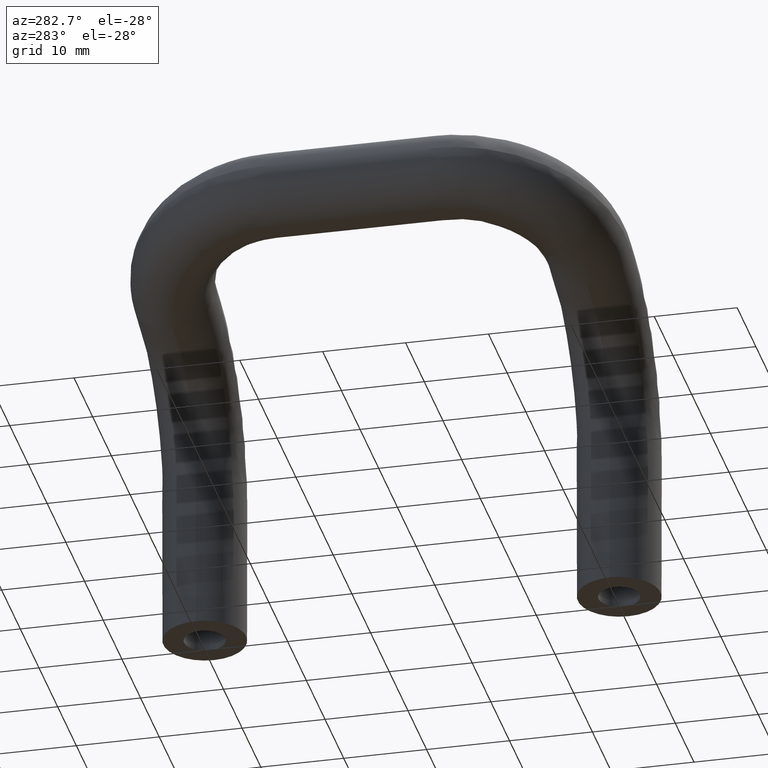
[diagram: clean part render]
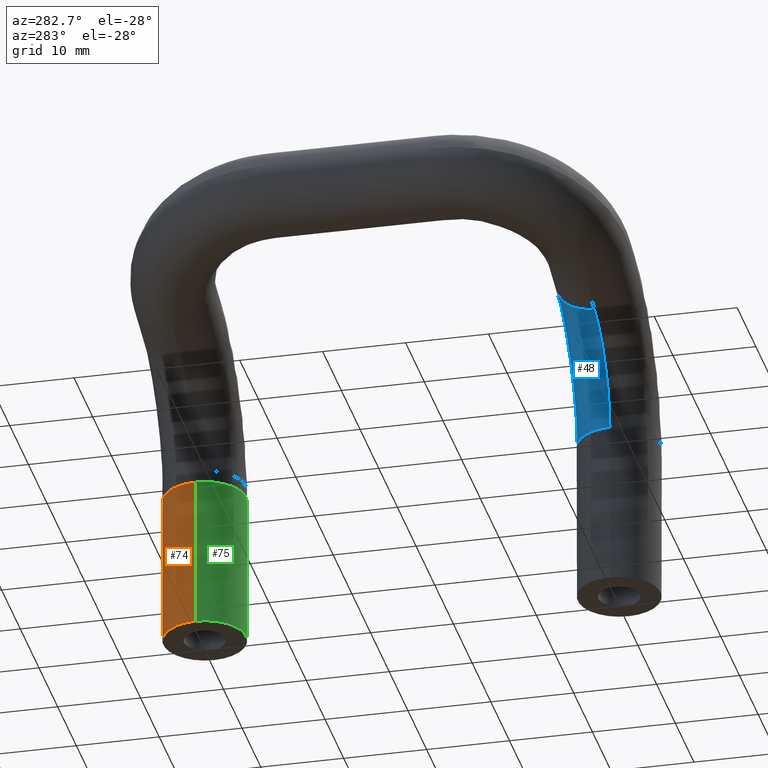
[diagram: same view with three faces highlighted in distinct colors, each labeled with its STEP entity id]
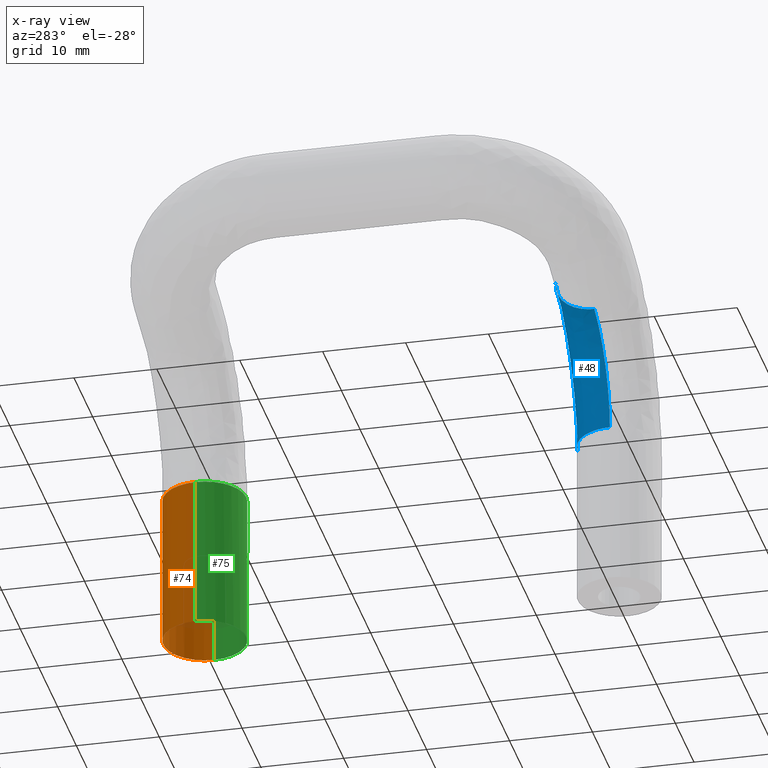
[diagram: x-ray of the same camera — body ghosted, the three highlighted faces saturated]
A machine part, auxiliary view with three faces highlighted in distinct colors.
The next image is the same camera in x-ray (body ghosted, the three faces saturated) — at least one of them is partly hidden behind the body in this view.
Their STEP definitions:

[orange] entity #74 — the highlighted cylindrical surface (partial cylindrical patch) has radius 5 mm, axis along (0, -0, 1).
#74=ADVANCED_FACE('',(#421),#420,.T.);
#420=CYLINDRICAL_SURFACE('',#1057,5.00000000000E+00);
#421=FACE_OUTER_BOUND('',#1058,.T.);
#1054=CARTESIAN_POINT('',(0.00000000000E+00,5.00000000000E+01,0.00000000000E+00));
#1055=DIRECTION('',(0.00000000000E+00,-0.00000000000E+00,1.00000000000E+00));
#1056=DIRECTION('',(1.00000000000E+00,0.00000000000E+00,0.00000000000E+00));
#1057=AXIS2_PLACEMENT_3D('',#1054,#1055,#1056);
#1058=EDGE_LOOP('',(#1244,#1245,#1246,#1247,#1248));
#1244=ORIENTED_EDGE('',*,*,#1273,.T.);
#1245=ORIENTED_EDGE('',*,*,#1307,.F.);
#1246=ORIENTED_EDGE('',*,*,#1352,.F.);
#1247=ORIENTED_EDGE('',*,*,#1313,.T.);
#1248=ORIENTED_EDGE('',*,*,#1353,.T.);
#1273=EDGE_CURVE('',#1385,#1431,#1432,.T.);
#1307=EDGE_CURVE('',#1653,#1431,#1660,.T.);
#1313=EDGE_CURVE('',#1698,#1699,#1700,.T.);
#1352=EDGE_CURVE('',#1698,#1653,#1956,.T.);
#1353=EDGE_CURVE('',#1699,#1385,#1962,.T.);
#1385=VERTEX_POINT('',#2000);
#1431=VERTEX_POINT('',#2047);
#1432=CIRCLE('',#2051,5.00000000000E+00);
#1653=VERTEX_POINT('',#2230);
#1660=CIRCLE('',#2238,5.00000000000E+00);
#1698=VERTEX_POINT('',#2274);
#1699=VERTEX_POINT('',#2275);
#1700=CIRCLE('',#2279,5.00000000000E+00);
#1956=(BOUNDED_CURVE() B_SPLINE_CURVE(1,(#2434,#2435),.UNSPECIFIED.,.F.,.F.) B_SPLINE_CURVE_WITH_KNOTS((2,2),(8.33333328360E-02,9.16666665505E-01),.UNSPECIFIED.) CURVE() GEOMETRIC_REPRESENTATION_ITEM() RATIONAL_B_SPLINE_CURVE((1.00000000000E+00,1.00000000000E+00)) REPRESENTATION_ITEM('') );
#1962=(BOUNDED_CURVE() B_SPLINE_CURVE(1,(#2436,#2437),.UNSPECIFIED.,.F.,.F.) B_SPLINE_CURVE_WITH_KNOTS((2,2),(8.33333333333E-02,9.16666666667E-01),.UNSPECIFIED.) CURVE() GEOMETRIC_REPRESENTATION_ITEM() RATIONAL_B_SPLINE_CURVE((7.50000000000E-01,7.50000000000E-01)) REPRESENTATION_ITEM('') );
#2000=CARTESIAN_POINT('',(-5.00000000000E+00,5.00000000000E+01,1.85393920142E+01));
#2047=CARTESIAN_POINT('',(-2.77555756156E-14,5.50000000000E+01,1.85393920142E+01));
#2048=CARTESIAN_POINT('',(-2.86229373536E-14,5.00000000000E+01,1.85393920142E+01));
#2049=DIRECTION('',(0.00000000000E+00,0.00000000000E+00,-1.00000000000E+00));
#2050=DIRECTION('',(-1.00000000000E+00,-0.00000000000E+00,-0.00000000000E+00));
#2051=AXIS2_PLACEMENT_3D('',#2048,#2049,#2050);
#2230=CARTESIAN_POINT('',(5.00000000000E+00,4.99999999992E+01,1.85393920142E+01));
#2235=CARTESIAN_POINT('',(-2.77555756156E-14,5.00000000000E+01,1.85393920142E+01));
#2236=DIRECTION('',(0.00000000000E+00,0.00000000000E+00,1.00000000000E+00));
#2237=DIRECTION('',(-1.83690953073E-16,-1.00000000000E+00,0.00000000000E+00));
#2238=AXIS2_PLACEMENT_3D('',#2235,#2236,#2237);
#2274=CARTESIAN_POINT('',(5.00000000000E+00,5.00000000000E+01,0.00000000000E+00));
#2275=CARTESIAN_POINT('',(-5.00000000000E+00,5.00000000000E+01,0.00000000000E+00));
#2276=CARTESIAN_POINT('',(0.00000000000E+00,5.00000000000E+01,0.00000000000E+00));
#2277=DIRECTION('',(0.00000000000E+00,0.00000000000E+00,1.00000000000E+00));
#2278=DIRECTION('',(-1.00000000000E+00,1.22460635382E-16,0.00000000000E+00));
#2279=AXIS2_PLACEMENT_3D('',#2276,#2277,#2278);
#2434=CARTESIAN_POINT('',(5.00000000000E+00,5.00000000000E+01,-1.10651705576E-08));
#2435=CARTESIAN_POINT('',(5.00000000000E+00,5.00000000000E+01,1.85393919883E+01));
#2436=CARTESIAN_POINT('',(-5.00000000000E+00,5.00000000000E+01,0.00000000000E+00));
#2437=CARTESIAN_POINT('',(-5.00000000000E+00,5.00000000000E+01,1.85393920142E+01));

[blue] entity #48 — the highlighted face is a freeform B-spline surface patch.
#48=ADVANCED_FACE('',(#159),#158,.T.);
#158=( BOUNDED_SURFACE() B_SPLINE_SURFACE( 3,2,((#602,#603,#604),(#605,#606,#607),(#608,#609,#610),(#611,#612,#613),(#614,#615,#616),(#617,#618,#619),(#620,#621,#622),(#623,#624,#625),(#626,#627,#628),(#629,#630,#631),(#632,#633,#634),(#635,#636,#637),(#638,#639,#640),(#641,#642,#643),(#644,#645,#646),(#647,#648,#649),(#650,#651,#652),(#653,#654,#655),(#656,#657,#658),(#659,#660,#661),(#662,#663,#664),(#665,#666,#667)), .UNSPECIFIED.,.F.,.F.,.F.) B_SPLINE_SURFACE_WITH_KNOTS((4,2,2,2,2,2,2,2,2,2,4),(3,3),(1.15198879526E-02,1.41956189868E-02,1.55334845038E-02,1.68713500209E-02,1.95470810550E-02,2.22228120892E-02,2.48985431233E-02,2.62364086404E-02,2.75742741575E-02,3.02500051916E-02,3.29257362257E-02),(0.00000000000E+00,1.00000000000E+00), .UNSPECIFIED. ) GEOMETRIC_REPRESENTATION_ITEM() RATIONAL_B_SPLINE_SURFACE(((1.00000000000E+00,7.11048089317E-01,1.00000000000E+00),(1.00000000000E+00,7.15863472198E-01,1.00000000000E+00),(1.00000000000E+00,7.20050110892E-01,1.00000000000E+00),(1.00000000000E+00,7.25462940477E-01,1.00000000000E+00),(1.00000000000E+00,7.27122232964E-01,1.00000000000E+00),(1.00000000000E+00,7.30154426285E-01,1.00000000000E+00),(1.00000000000E+00,7.31532415708E-01,1.00000000000E+00),(1.00000000000E+00,7.35189482492E-01,1.00000000000E+00),(1.00000000000E+00,7.36995008859E-01,1.00000000000E+00),(1.00000000000E+00,7.39417731135E-01,1.00000000000E+00),(1.00000000000E+00,7.40034833635E-01,1.00000000000E+00),(1.00000000000E+00,7.40041529203E-01,1.00000000000E+00),(1.00000000000E+00,7.39430836653E-01,1.00000000000E+00),(1.00000000000E+00,7.37615001135E-01,1.00000000000E+00),(1.00000000000E+00,7.36858850919E-01,1.00000000000E+00),(1.00000000000E+00,7.35037480967E-01,1.00000000000E+00),(1.00000000000E+00,7.33967559680E-01,1.00000000000E+00),(1.00000000000E+00,7.30306476515E-01,1.00000000000E+00),(1.00000000000E+00,7.27289819052E-01,1.00000000000E+00),(1.00000000000E+00,7.20082678052E-01,1.00000000000E+00),(1.00000000000E+00,7.15890793850E-01,1.00000000000E+00),(1.00000000000E+00,7.11048089317E-01,1.00000000000E+00))) REPRESENTATION_ITEM('') SURFACE() );
#159=FACE_OUTER_BOUND('',#668,.T.);
#602=CARTESIAN_POINT('',(-5.00000000000E+00,3.14268399415E-04,2.00000000000E+01));
#603=CARTESIAN_POINT('',(-5.00000000000E+00,4.94472753809E+00,1.99957507119E+01));
#604=CARTESIAN_POINT('',(-5.58938532152E-02,5.00000000000E+00,1.99957032101E+01));
#605=CARTESIAN_POINT('',(-5.00000000000E+00,1.08435524765E-03,2.06325145911E+01));
#606=CARTESIAN_POINT('',(-4.99977753041E+00,4.87819330901E+00,2.06192117945E+01));
#607=CARTESIAN_POINT('',(-1.24171475600E-01,4.99999999999E+00,2.08838777431E+01));
#608=CARTESIAN_POINT('',(-5.04969987037E+00,3.14993048757E-03,2.12588508398E+01));
#609=CARTESIAN_POINT('',(-5.04803599064E+00,4.82182775158E+00,2.12438899645E+01));
#610=CARTESIAN_POINT('',(-2.53453512585E-01,5.00000000000E+00,2.17544237259E+01));
#611=CARTESIAN_POINT('',(-5.19720815658E+00,6.87134580645E-03,2.21892234599E+01));
#612=CARTESIAN_POINT('',(-5.19455133829E+00,4.75048210100E+00,2.21746827422E+01));
#613=CARTESIAN_POINT('',(-5.35429783792E-01,5.00000000000E+00,2.30396148152E+01));
#614=CARTESIAN_POINT('',(-5.25859418299E+00,8.22019839198E-03,2.24978222129E+01));
#615=CARTESIAN_POINT('',(-5.25545717743E+00,4.72893958396E+00,2.24831504711E+01));
#616=CARTESIAN_POINT('',(-6.44182903649E-01,5.00000000000E+00,2.34645607857E+01));
#617=CARTESIAN_POINT('',(-5.40622138169E+00,1.09581091947E-02,2.31119164058E+01));
#618=CARTESIAN_POINT('',(-5.40232982926E+00,4.68998259300E+00,2.30973442723E+01));
#619=CARTESIAN_POINT('',(-8.91650178859E-01,5.00000000000E+00,2.43083585987E+01));
#620=CARTESIAN_POINT('',(-5.49292284100E+00,1.23530413350E-02,2.34187414501E+01));
#621=CARTESIAN_POINT('',(-5.48871256351E+00,4.67247154299E+00,2.34046640000E+01));
#622=CARTESIAN_POINT('',(-1.03107153988E+00,4.99999999999E+00,2.47290290677E+01));
#623=CARTESIAN_POINT('',(-5.78794679067E+00,1.63174565063E-02,2.43234632199E+01));
#624=CARTESIAN_POINT('',(-5.78268903769E+00,4.62647111938E+00,2.43096605575E+01));
#625=CARTESIAN_POINT('',(-1.49025102530E+00,5.00000000002E+00,2.59680310758E+01));
#626=CARTESIAN_POINT('',(-6.02986938433E+00,1.86433473391E-02,2.49040974080E+01));
#627=CARTESIAN_POINT('',(-6.02491687308E+00,4.60414546423E+00,2.48934594547E+01));
#628=CARTESIAN_POINT('',(-1.84909700107E+00,5.00000000000E+00,2.67613568292E+01));
#629=CARTESIAN_POINT('',(-6.60133209048E+00,2.18625547845E-02,2.60217640953E+01));
#630=CARTESIAN_POINT('',(-6.59781382855E+00,4.57442083702E+00,2.60158317928E+01));
#631=CARTESIAN_POINT('',(-2.67064620120E+00,5.00000000000E+00,2.82916421961E+01));
#632=CARTESIAN_POINT('',(-6.93086641514E+00,2.27585184993E-02,2.65587994711E+01));
#633=CARTESIAN_POINT('',(-6.92912164868E+00,4.56692664506E+00,2.65564060705E+01));
#634=CARTESIAN_POINT('',(-3.13332800057E+00,5.00000000002E+00,2.90285682502E+01));
#635=CARTESIAN_POINT('',(-7.68135990429E+00,2.27679735374E-02,2.75873742770E+01));
#636=CARTESIAN_POINT('',(-7.68307318105E+00,4.56684524110E+00,2.75897245200E+01));
#637=CARTESIAN_POINT('',(-4.17058988791E+00,4.99999999998E+00,3.04500046835E+01));
#638=CARTESIAN_POINT('',(-8.09290981983E+00,2.18807368399E-02,2.80659882012E+01));
#639=CARTESIAN_POINT('',(-8.09746102520E+00,4.57426103730E+00,2.80711219213E+01));
#640=CARTESIAN_POINT('',(-4.73219190398E+00,5.00000000000E+00,3.11166959045E+01));
#641=CARTESIAN_POINT('',(-8.76266014183E+00,1.94667885447E-02,2.87318576114E+01));
#642=CARTESIAN_POINT('',(-8.76970429421E+00,4.59651989638E+00,2.87385557530E+01));
#643=CARTESIAN_POINT('',(-5.64028982929E+00,5.00000000000E+00,3.20563396876E+01));
#644=CARTESIAN_POINT('',(-8.99470312442E+00,1.84848639617E-02,2.89451146078E+01));
#645=CARTESIAN_POINT('',(-9.00285562424E+00,4.60583546079E+00,2.89524288307E+01));
#646=CARTESIAN_POINT('',(-5.95401497983E+00,5.00000000001E+00,3.23594499366E+01));
#647=CARTESIAN_POINT('',(-9.47657441965E+00,1.62503837240E-02,2.93540323364E+01));
#648=CARTESIAN_POINT('',(-9.48652620554E+00,4.62843129043E+00,2.93620804948E+01));
#649=CARTESIAN_POINT('',(-6.60450850143E+00,4.99999999999E+00,3.29457627101E+01));
#650=CARTESIAN_POINT('',(-9.72737128501E+00,1.49926112463E-02,2.95503744519E+01));
#651=CARTESIAN_POINT('',(-9.73826005527E+00,4.64178994996E+00,2.95586647163E+01));
#652=CARTESIAN_POINT('',(-6.94258090259E+00,4.99999999999E+00,3.32299657414E+01));
#653=CARTESIAN_POINT('',(-1.05000646008E+01,1.10245309934E-02,3.01071243289E+01));
#654=CARTESIAN_POINT('',(-1.05141116220E+01,4.68799539804E+00,3.01163520682E+01));
#655=CARTESIAN_POINT('',(-7.98397301471E+00,5.00000000001E+00,3.40450166835E+01));
#656=CARTESIAN_POINT('',(-1.10382590786E+01,8.13163280669E-03,3.04331966549E+01));
#657=CARTESIAN_POINT('',(-1.10538460824E+01,4.72664437223E+00,3.04418289500E+01));
#658=CARTESIAN_POINT('',(-8.70907565798E+00,5.00000000000E+00,3.45351864944E+01));
#659=CARTESIAN_POINT('',(-1.21592151303E+01,3.16807766418E-03,3.09982157235E+01));
#660=CARTESIAN_POINT('',(-1.21729688360E+01,4.82139290653E+00,3.10043648804E+01));
#661=CARTESIAN_POINT('',(-1.02257878645E+01,5.00000000000E+00,3.54148702670E+01));
#662=CARTESIAN_POINT('',(-1.27419938708E+01,1.08873899270E-03,3.12371716326E+01));
#663=CARTESIAN_POINT('',(-1.27546690936E+01,4.87781708089E+00,3.12414561642E+01));
#664=CARTESIAN_POINT('',(-1.10173864774E+01,4.99999999999E+00,3.58043985109E+01));
#665=CARTESIAN_POINT('',(-1.33479341754E+01,3.14268399415E-04,3.14307661691E+01));
#666=CARTESIAN_POINT('',(-1.33519818936E+01,4.94472753809E+00,3.14320593924E+01));
#667=CARTESIAN_POINT('',(-1.18473437178E+01,5.00000000000E+00,3.61416506223E+01));
#668=EDGE_LOOP('',(#1102,#1103,#1104,#1105));
#1102=ORIENTED_EDGE('',*,*,#1287,.T.);
#1103=ORIENTED_EDGE('',*,*,#1277,.F.);
#1104=ORIENTED_EDGE('',*,*,#1283,.F.);
#1105=ORIENTED_EDGE('',*,*,#1288,.T.);
#1277=EDGE_CURVE('',#1458,#1459,#1460,.T.);
#1283=EDGE_CURVE('',#1499,#1458,#1500,.T.);
#1287=EDGE_CURVE('',#1526,#1459,#1527,.T.);
#1288=EDGE_CURVE('',#1499,#1526,#1533,.T.);
#1458=VERTEX_POINT('',#2066);
#1459=VERTEX_POINT('',#2067);
#1460=(BOUNDED_CURVE() B_SPLINE_CURVE(3,(#2068,#2069,#2070,#2071,#2072,#2073,#2074,#2075,#2076,#2077,#2078,#2079,#2080,#2081,#2082,#2083,#2084,#2085),.UNSPECIFIED.,.F.,.F.) B_SPLINE_CURVE_WITH_KNOTS((4,2,2,2,2,2,2,2,4),(5.20422327056E-18,3.76421041875E-03,4.70526302344E-03,5.64631562813E-03,7.52842083751E-03,1.12926312563E-02,1.22336838610E-02,1.31747364656E-02,1.50568416750E-02),.UNSPECIFIED.) CURVE() GEOMETRIC_REPRESENTATION_ITEM() RATIONAL_B_SPLINE_CURVE((1.00000000000E+00,1.00000000000E+00,1.00000000000E+00,1.00000000000E+00,1.00000000000E+00,1.00000000000E+00,1.00000000000E+00,1.00000000000E+00,1.00000000000E+00,1.00000000000E+00,1.00000000000E+00,1.00000000000E+00,1.00000000000E+00,1.00000000000E+00,1.00000000000E+00,1.00000000000E+00,1.00000000000E+00,1.00000000000E+00)) REPRESENTATION_ITEM('') );
#1499=VERTEX_POINT('',#2125);
#1500=(BOUNDED_CURVE() B_SPLINE_CURVE(2,(#2126,#2127,#2128),.UNSPECIFIED.,.F.,.F.) B_SPLINE_CURVE_WITH_KNOTS((3,3),(0.00000000000E+00,1.00000000000E+00),.UNSPECIFIED.) CURVE() GEOMETRIC_REPRESENTATION_ITEM() RATIONAL_B_SPLINE_CURVE((1.00000000000E+00,7.11048089317E-01,1.00000000000E+00)) REPRESENTATION_ITEM('') );
#1526=VERTEX_POINT('',#2143);
#1527=(BOUNDED_CURVE() B_SPLINE_CURVE(2,(#2144,#2145,#2146),.UNSPECIFIED.,.F.,.F.) B_SPLINE_CURVE_WITH_KNOTS((3,3),(0.00000000000E+00,1.00000000000E+00),.UNSPECIFIED.) CURVE() GEOMETRIC_REPRESENTATION_ITEM() RATIONAL_B_SPLINE_CURVE((1.00000000000E+00,7.11048089317E-01,1.00000000000E+00)) REPRESENTATION_ITEM('') );
#1533=CIRCLE('',#2150,1.90000000000E+01);
#2066=CARTESIAN_POINT('',(-1.33479341754E+01,-3.14268399637E-04,3.14307661691E+01));
#2067=CARTESIAN_POINT('',(-5.00000000000E+00,-3.14268399637E-04,2.00000000000E+01));
#2068=CARTESIAN_POINT('',(-1.33479341754E+01,-3.14268399637E-04,3.14307661691E+01));
#2069=CARTESIAN_POINT('',(-1.21360311679E+01,1.86323786702E-03,3.10435699400E+01));
#2070=CARTESIAN_POINT('',(-1.10157247074E+01,8.37603326058E-03,3.04784636554E+01));
#2071=CARTESIAN_POINT('',(-9.72887199854E+00,1.49849999027E-02,2.95515081032E+01));
#2072=CARTESIAN_POINT('',(-9.47826013281E+00,1.62420909230E-02,2.93553787727E+01));
#2073=CARTESIAN_POINT('',(-8.99671852457E+00,1.84759907239E-02,2.89469083060E+01));
#2074=CARTESIAN_POINT('',(-8.76482523310E+00,1.94579904312E-02,2.87338897119E+01));
#2075=CARTESIAN_POINT('',(-8.09547779964E+00,2.18734550579E-02,2.80687803382E+01));
#2076=CARTESIAN_POINT('',(-7.68418492917E+00,2.27634709860E-02,2.75907999417E+01));
#2077=CARTESIAN_POINT('',(-6.55870953058E+00,2.27628535198E-02,2.60496338806E+01));
#2078=CARTESIAN_POINT('',(-5.98763181475E+00,1.89849687346E-02,2.49330003921E+01));
#2079=CARTESIAN_POINT('',(-5.49537021960E+00,1.23898083933E-02,2.34269396312E+01));
#2080=CARTESIAN_POINT('',(-5.40849211774E+00,1.09963482428E-02,2.31203790685E+01));
#2081=CARTESIAN_POINT('',(-5.26035446517E+00,8.25661496566E-03,2.25061012015E+01));
#2082=CARTESIAN_POINT('',(-5.19866070391E+00,6.90482626721E-03,2.21971376213E+01));
#2083=CARTESIAN_POINT('',(-5.05026034906E+00,3.17029110753E-03,2.12648375029E+01));
#2084=CARTESIAN_POINT('',(-5.00000000000E+00,1.08875233008E-03,2.06361262576E+01));
#2085=CARTESIAN_POINT('',(-5.00000000000E+00,-3.14268399637E-04,2.00000000000E+01));
#2125=CARTESIAN_POINT('',(-1.18473437178E+01,5.00000000000E+00,3.61416506223E+01));
#2126=CARTESIAN_POINT('',(-1.18473437178E+01,5.00000000000E+00,3.61416506223E+01));
#2127=CARTESIAN_POINT('',(-1.33519818936E+01,4.94472753809E+00,3.14320593924E+01));
#2128=CARTESIAN_POINT('',(-1.33479341754E+01,-3.14268399637E-04,3.14307661691E+01));
#2143=CARTESIAN_POINT('',(-5.58938532152E-02,5.00000000000E+00,1.99957032101E+01));
#2144=CARTESIAN_POINT('',(-5.58938532152E-02,5.00000000000E+00,1.99957032101E+01));
#2145=CARTESIAN_POINT('',(-5.00000000000E+00,4.94472753809E+00,1.99957507119E+01));
#2146=CARTESIAN_POINT('',(-5.00000000000E+00,-3.14268399637E-04,2.00000000000E+01));
#2147=CARTESIAN_POINT('',(-1.90000000000E+01,5.00000000000E+00,1.85393920142E+01));
#2148=DIRECTION('',(-0.00000000000E+00,1.00000000000E+00,0.00000000000E+00));
#2149=DIRECTION('',(-0.00000000000E+00,-0.00000000000E+00,-1.00000000000E+00));
#2150=AXIS2_PLACEMENT_3D('',#2147,#2148,#2149);

[green] entity #75 — the highlighted cylindrical surface (partial cylindrical patch) has radius 5 mm, axis along (0, -0, 1).
#75=ADVANCED_FACE('',(#431),#430,.T.);
#430=CYLINDRICAL_SURFACE('',#1062,5.00000000000E+00);
#431=FACE_OUTER_BOUND('',#1063,.T.);
#1059=CARTESIAN_POINT('',(0.00000000000E+00,5.00000000000E+01,0.00000000000E+00));
#1060=DIRECTION('',(0.00000000000E+00,-0.00000000000E+00,1.00000000000E+00));
#1061=DIRECTION('',(1.00000000000E+00,0.00000000000E+00,0.00000000000E+00));
#1062=AXIS2_PLACEMENT_3D('',#1059,#1060,#1061);
#1063=EDGE_LOOP('',(#1249,#1250,#1251,#1252,#1253));
#1249=ORIENTED_EDGE('',*,*,#1314,.T.);
#1250=ORIENTED_EDGE('',*,*,#1352,.T.);
#1251=ORIENTED_EDGE('',*,*,#1306,.F.);
#1252=ORIENTED_EDGE('',*,*,#1266,.T.);
#1253=ORIENTED_EDGE('',*,*,#1353,.F.);
#1266=EDGE_CURVE('',#1384,#1385,#1386,.T.);
#1306=EDGE_CURVE('',#1384,#1653,#1654,.T.);
#1314=EDGE_CURVE('',#1699,#1698,#1706,.T.);
#1352=EDGE_CURVE('',#1698,#1653,#1956,.T.);
#1353=EDGE_CURVE('',#1699,#1385,#1962,.T.);
#1384=VERTEX_POINT('',#1999);
#1385=VERTEX_POINT('',#2000);
#1386=CIRCLE('',#2004,5.00000000000E+00);
#1653=VERTEX_POINT('',#2230);
#1654=CIRCLE('',#2234,5.00000000000E+00);
#1698=VERTEX_POINT('',#2274);
#1699=VERTEX_POINT('',#2275);
#1706=CIRCLE('',#2283,5.00000000000E+00);
#1956=(BOUNDED_CURVE() B_SPLINE_CURVE(1,(#2434,#2435),.UNSPECIFIED.,.F.,.F.) B_SPLINE_CURVE_WITH_KNOTS((2,2),(8.33333328360E-02,9.16666665505E-01),.UNSPECIFIED.) CURVE() GEOMETRIC_REPRESENTATION_ITEM() RATIONAL_B_SPLINE_CURVE((1.00000000000E+00,1.00000000000E+00)) REPRESENTATION_ITEM('') );
#1962=(BOUNDED_CURVE() B_SPLINE_CURVE(1,(#2436,#2437),.UNSPECIFIED.,.F.,.F.) B_SPLINE_CURVE_WITH_KNOTS((2,2),(8.33333333333E-02,9.16666666667E-01),.UNSPECIFIED.) CURVE() GEOMETRIC_REPRESENTATION_ITEM() RATIONAL_B_SPLINE_CURVE((7.50000000000E-01,7.50000000000E-01)) REPRESENTATION_ITEM('') );
#1999=CARTESIAN_POINT('',(-2.77555756156E-14,4.50000000000E+01,1.85393920142E+01));
#2000=CARTESIAN_POINT('',(-5.00000000000E+00,5.00000000000E+01,1.85393920142E+01));
#2001=CARTESIAN_POINT('',(-2.77555756156E-14,5.00000000000E+01,1.85393920142E+01));
#2002=DIRECTION('',(0.00000000000E+00,0.00000000000E+00,-1.00000000000E+00));
#2003=DIRECTION('',(1.83690953073E-16,-1.00000000000E+00,0.00000000000E+00));
#2004=AXIS2_PLACEMENT_3D('',#2001,#2002,#2003);
#2230=CARTESIAN_POINT('',(5.00000000000E+00,4.99999999992E+01,1.85393920142E+01));
#2231=CARTESIAN_POINT('',(-2.77555756156E-14,5.00000000000E+01,1.85393920142E+01));
#2232=DIRECTION('',(0.00000000000E+00,0.00000000000E+00,1.00000000000E+00));
#2233=DIRECTION('',(-1.83690953073E-16,-1.00000000000E+00,0.00000000000E+00));
#2234=AXIS2_PLACEMENT_3D('',#2231,#2232,#2233);
#2274=CARTESIAN_POINT('',(5.00000000000E+00,5.00000000000E+01,0.00000000000E+00));
#2275=CARTESIAN_POINT('',(-5.00000000000E+00,5.00000000000E+01,0.00000000000E+00));
#2280=CARTESIAN_POINT('',(0.00000000000E+00,5.00000000000E+01,0.00000000000E+00));
#2281=DIRECTION('',(0.00000000000E+00,0.00000000000E+00,1.00000000000E+00));
#2282=DIRECTION('',(-1.00000000000E+00,1.22460635382E-16,0.00000000000E+00));
#2283=AXIS2_PLACEMENT_3D('',#2280,#2281,#2282);
#2434=CARTESIAN_POINT('',(5.00000000000E+00,5.00000000000E+01,-1.10651705576E-08));
#2435=CARTESIAN_POINT('',(5.00000000000E+00,5.00000000000E+01,1.85393919883E+01));
#2436=CARTESIAN_POINT('',(-5.00000000000E+00,5.00000000000E+01,0.00000000000E+00));
#2437=CARTESIAN_POINT('',(-5.00000000000E+00,5.00000000000E+01,1.85393920142E+01));